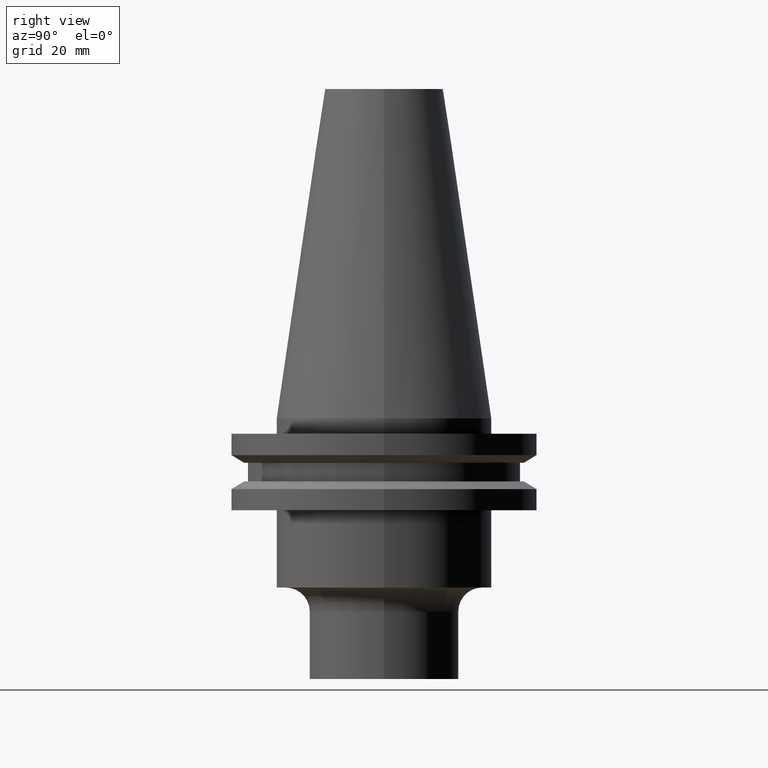
[diagram: clean part render]
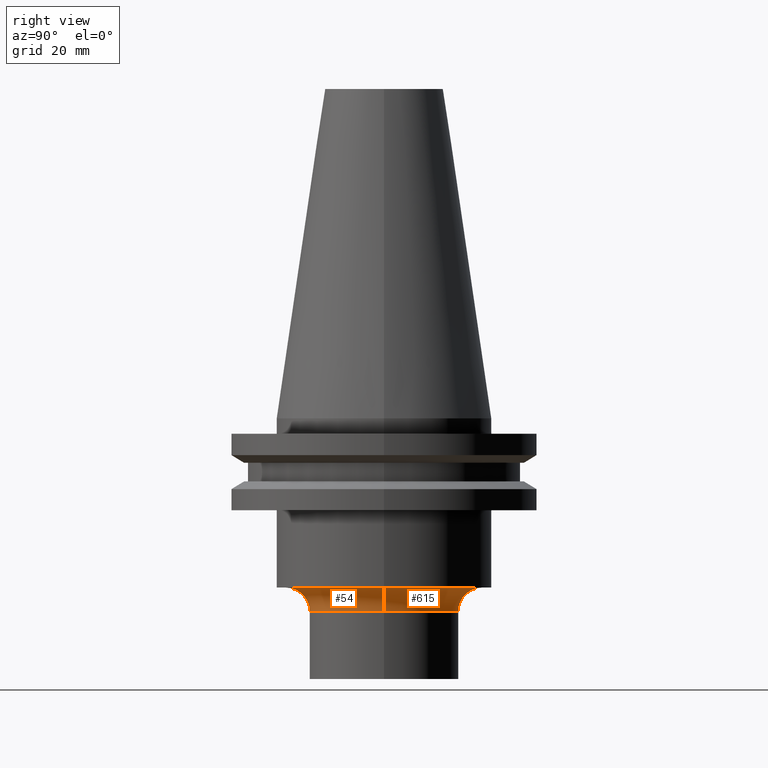
[diagram: same view with one multi-face feature highlighted, each face labeled with its STEP entity id]
A machine part, right view. The highlighted faces form ONE feature: a constant-radius fillet chain: 2 tangent blend faces with common blend radius 5 mm. The faces share edges in the B-rep.
Their STEP definitions:
[1] entity #54 (Torus):
#18 = ORIENTED_EDGE ( 'NONE', *, *, #356, .T. ) ;
#21 = ORIENTED_EDGE ( 'NONE', *, *, #489, .F. ) ;
#27 = DIRECTION ( 'NONE',  ( 1.000000000000000000, 0.000000000000000000, 0.000000000000000000 ) ) ;
#31 = CARTESIAN_POINT ( 'NONE',  ( 0.000000000000000000, 0.000000000000000000, -40.04999999999999005 ) ) ;
#42 = VERTEX_POINT ( 'NONE', #752 ) ;
#54 = ADVANCED_FACE ( 'NONE', ( #706 ), #151, .F. ) ;
#95 = AXIS2_PLACEMENT_3D ( 'NONE', #108, #462, #173 ) ;
#108 = CARTESIAN_POINT ( 'NONE',  ( 0.000000000000000000, 0.000000000000000000, -40.04999999999999716 ) ) ;
#151 = TOROIDAL_SURFACE ( 'NONE', #95, 20.50000000000000000, 4.999999999999999112 ) ;
#170 = CARTESIAN_POINT ( 'NONE',  ( -15.50000000000000000, 1.898202538678397557E-15, -40.04999999999999005 ) ) ;
#171 = ORIENTED_EDGE ( 'NONE', *, *, #662, .F. ) ;
#173 = DIRECTION ( 'NONE',  ( 1.000000000000000000, 0.000000000000000000, 0.000000000000000000 ) ) ;
#192 = CARTESIAN_POINT ( 'NONE',  ( -20.50000000000000000, 2.510525938252074481E-15, -40.04999999999999716 ) ) ;
#199 = VERTEX_POINT ( 'NONE', #170 ) ;
#305 = AXIS2_PLACEMENT_3D ( 'NONE', #698, #692, #753 ) ;
#312 = DIRECTION ( 'NONE',  ( -1.000000000000000000, 1.224646799147352714E-16, 0.000000000000000000 ) ) ;
#324 = CARTESIAN_POINT ( 'NONE',  ( -20.50000000000000000, 2.510525938252074481E-15, -35.04999999999999716 ) ) ;
#348 = ORIENTED_EDGE ( 'NONE', *, *, #467, .T. ) ;
#356 = EDGE_CURVE ( 'NONE', #526, #199, #595, .T. ) ;
#384 = DIRECTION ( 'NONE',  ( 0.000000000000000000, 0.000000000000000000, -1.000000000000000000 ) ) ;
#388 = AXIS2_PLACEMENT_3D ( 'NONE', #503, #734, #384 ) ;
#429 = CIRCLE ( 'NONE', #516, 15.50000000000000000 ) ;
#462 = DIRECTION ( 'NONE',  ( -0.000000000000000000, -0.000000000000000000, 1.000000000000000000 ) ) ;
#467 = EDGE_CURVE ( 'NONE', #199, #565, #429, .T. ) ;
#489 = EDGE_CURVE ( 'NONE', #42, #565, #727, .T. ) ;
#503 = CARTESIAN_POINT ( 'NONE',  ( 20.50000000000000000, 0.000000000000000000, -40.04999999999999716 ) ) ;
#516 = AXIS2_PLACEMENT_3D ( 'NONE', #31, #563, #27 ) ;
#521 = CARTESIAN_POINT ( 'NONE',  ( 15.50000000000000000, 0.000000000000000000, -40.04999999999999005 ) ) ;
#526 = VERTEX_POINT ( 'NONE', #324 ) ;
#563 = DIRECTION ( 'NONE',  ( -0.000000000000000000, -0.000000000000000000, 1.000000000000000000 ) ) ;
#565 = VERTEX_POINT ( 'NONE', #521 ) ;
#583 = CIRCLE ( 'NONE', #305, 20.50000000000000000 ) ;
#595 = CIRCLE ( 'NONE', #630, 5.000000000000000888 ) ;
#625 = DIRECTION ( 'NONE',  ( 1.224646799147353207E-16, 1.000000000000000000, 0.000000000000000000 ) ) ;
#630 = AXIS2_PLACEMENT_3D ( 'NONE', #192, #625, #312 ) ;
#631 = EDGE_LOOP ( 'NONE', ( #171, #18, #348, #21 ) ) ;
#662 = EDGE_CURVE ( 'NONE', #526, #42, #583, .T. ) ;
#692 = DIRECTION ( 'NONE',  ( -0.000000000000000000, -0.000000000000000000, 1.000000000000000000 ) ) ;
#698 = CARTESIAN_POINT ( 'NONE',  ( 0.000000000000000000, 0.000000000000000000, -35.04999999999999716 ) ) ;
#706 = FACE_OUTER_BOUND ( 'NONE', #631, .T. ) ;
#727 = CIRCLE ( 'NONE', #388, 4.999999999999997335 ) ;
#734 = DIRECTION ( 'NONE',  ( 0.000000000000000000, -1.000000000000000000, 0.000000000000000000 ) ) ;
#752 = CARTESIAN_POINT ( 'NONE',  ( 20.50000000000000000, 0.000000000000000000, -35.04999999999999716 ) ) ;
#753 = DIRECTION ( 'NONE',  ( 1.000000000000000000, 0.000000000000000000, 0.000000000000000000 ) ) ;
[2] entity #615 (Torus):
#34 = EDGE_LOOP ( 'NONE', ( #735, #581, #287, #488 ) ) ;
#35 = FACE_OUTER_BOUND ( 'NONE', #34, .T. ) ;
#42 = VERTEX_POINT ( 'NONE', #752 ) ;
#94 = DIRECTION ( 'NONE',  ( -0.000000000000000000, -0.000000000000000000, 1.000000000000000000 ) ) ;
#124 = CIRCLE ( 'NONE', #689, 20.50000000000000000 ) ;
#140 = AXIS2_PLACEMENT_3D ( 'NONE', #333, #94, #757 ) ;
#159 = EDGE_CURVE ( 'NONE', #42, #526, #124, .T. ) ;
#161 = DIRECTION ( 'NONE',  ( 1.000000000000000000, 0.000000000000000000, 0.000000000000000000 ) ) ;
#170 = CARTESIAN_POINT ( 'NONE',  ( -15.50000000000000000, 1.898202538678397557E-15, -40.04999999999999005 ) ) ;
#179 = AXIS2_PLACEMENT_3D ( 'NONE', #695, #473, #518 ) ;
#190 = TOROIDAL_SURFACE ( 'NONE', #179, 20.50000000000000000, 4.999999999999999112 ) ;
#192 = CARTESIAN_POINT ( 'NONE',  ( -20.50000000000000000, 2.510525938252074481E-15, -40.04999999999999716 ) ) ;
#199 = VERTEX_POINT ( 'NONE', #170 ) ;
#231 = CIRCLE ( 'NONE', #140, 15.50000000000000000 ) ;
#232 = CARTESIAN_POINT ( 'NONE',  ( 0.000000000000000000, 0.000000000000000000, -35.04999999999999716 ) ) ;
#287 = ORIENTED_EDGE ( 'NONE', *, *, #489, .T. ) ;
#312 = DIRECTION ( 'NONE',  ( -1.000000000000000000, 1.224646799147352714E-16, 0.000000000000000000 ) ) ;
#324 = CARTESIAN_POINT ( 'NONE',  ( -20.50000000000000000, 2.510525938252074481E-15, -35.04999999999999716 ) ) ;
#333 = CARTESIAN_POINT ( 'NONE',  ( 0.000000000000000000, 0.000000000000000000, -40.04999999999999005 ) ) ;
#356 = EDGE_CURVE ( 'NONE', #526, #199, #595, .T. ) ;
#384 = DIRECTION ( 'NONE',  ( 0.000000000000000000, 0.000000000000000000, -1.000000000000000000 ) ) ;
#388 = AXIS2_PLACEMENT_3D ( 'NONE', #503, #734, #384 ) ;
#473 = DIRECTION ( 'NONE',  ( -0.000000000000000000, -0.000000000000000000, 1.000000000000000000 ) ) ;
#488 = ORIENTED_EDGE ( 'NONE', *, *, #575, .T. ) ;
#489 = EDGE_CURVE ( 'NONE', #42, #565, #727, .T. ) ;
#503 = CARTESIAN_POINT ( 'NONE',  ( 20.50000000000000000, 0.000000000000000000, -40.04999999999999716 ) ) ;
#518 = DIRECTION ( 'NONE',  ( 1.000000000000000000, 0.000000000000000000, 0.000000000000000000 ) ) ;
#521 = CARTESIAN_POINT ( 'NONE',  ( 15.50000000000000000, 0.000000000000000000, -40.04999999999999005 ) ) ;
#526 = VERTEX_POINT ( 'NONE', #324 ) ;
#565 = VERTEX_POINT ( 'NONE', #521 ) ;
#575 = EDGE_CURVE ( 'NONE', #565, #199, #231, .T. ) ;
#581 = ORIENTED_EDGE ( 'NONE', *, *, #159, .F. ) ;
#595 = CIRCLE ( 'NONE', #630, 5.000000000000000888 ) ;
#615 = ADVANCED_FACE ( 'NONE', ( #35 ), #190, .F. ) ;
#625 = DIRECTION ( 'NONE',  ( 1.224646799147353207E-16, 1.000000000000000000, 0.000000000000000000 ) ) ;
#630 = AXIS2_PLACEMENT_3D ( 'NONE', #192, #625, #312 ) ;
#689 = AXIS2_PLACEMENT_3D ( 'NONE', #232, #696, #161 ) ;
#695 = CARTESIAN_POINT ( 'NONE',  ( 0.000000000000000000, 0.000000000000000000, -40.04999999999999716 ) ) ;
#696 = DIRECTION ( 'NONE',  ( -0.000000000000000000, -0.000000000000000000, 1.000000000000000000 ) ) ;
#727 = CIRCLE ( 'NONE', #388, 4.999999999999997335 ) ;
#734 = DIRECTION ( 'NONE',  ( 0.000000000000000000, -1.000000000000000000, 0.000000000000000000 ) ) ;
#735 = ORIENTED_EDGE ( 'NONE', *, *, #356, .F. ) ;
#752 = CARTESIAN_POINT ( 'NONE',  ( 20.50000000000000000, 0.000000000000000000, -35.04999999999999716 ) ) ;
#757 = DIRECTION ( 'NONE',  ( 1.000000000000000000, 0.000000000000000000, 0.000000000000000000 ) ) ;